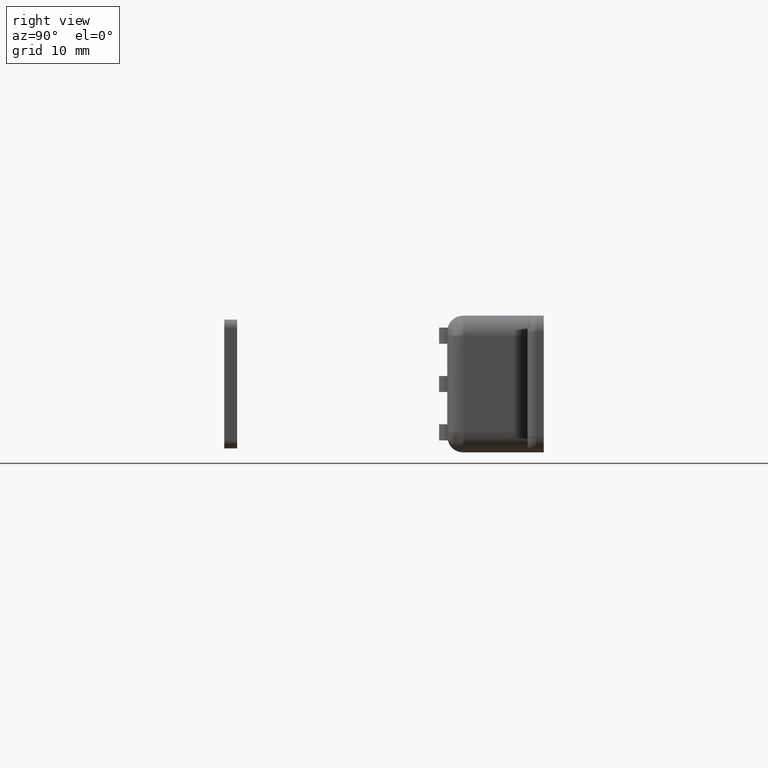
[diagram: clean part render]
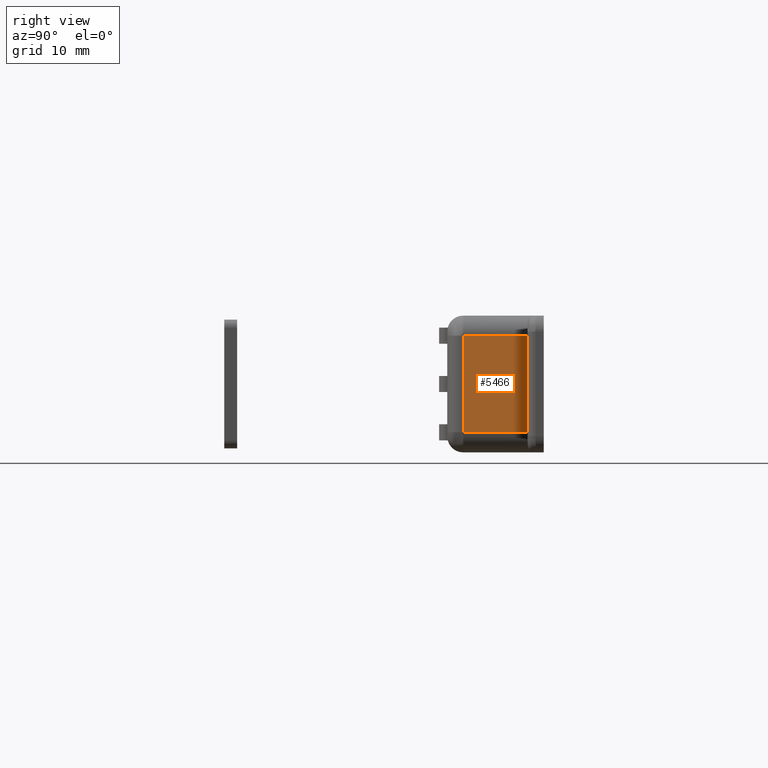
[diagram: same view with one face highlighted and labeled with its STEP entity id]
A machine part, right view. The second image highlights one B-rep face of the part: STEP entity #5466.
In plain terms, the highlighted face is a freeform B-spline surface patch.
Its self-contained STEP definition (entity closure, byte-faithful):
#4704=CARTESIAN_POINT('',(29.500000000000000,-10.0,-6.0));
#4705=VERTEX_POINT('',#4704);
#4827=CARTESIAN_POINT('',(29.500000000000000,-10.0,6.0));
#4828=VERTEX_POINT('',#4827);
#4850=CARTESIAN_POINT('',(29.500000000000000,-10.0,6.0));
#4851=CARTESIAN_POINT('',(29.500000000000000,-10.0,-6.0));
#4852=QUASI_UNIFORM_CURVE('',1,(#4850,#4851),.UNSPECIFIED.,.F.,.U.);
#4853=EDGE_CURVE('',#4828,#4705,#4852,.T.);
#4947=CARTESIAN_POINT('',(29.500000000000000,-2.0,-6.0));
#4948=VERTEX_POINT('',#4947);
#4949=CARTESIAN_POINT('',(29.500000000000000,-10.0,-6.0));
#4950=CARTESIAN_POINT('',(29.500000000000000,-2.0,-6.0));
#4951=QUASI_UNIFORM_CURVE('',1,(#4949,#4950),.UNSPECIFIED.,.F.,.U.);
#4952=EDGE_CURVE('',#4705,#4948,#4951,.T.);
#4997=CARTESIAN_POINT('',(29.500000000000000,-2.0,6.0));
#4998=VERTEX_POINT('',#4997);
#4999=CARTESIAN_POINT('',(29.500000000000000,-2.0,6.0));
#5000=CARTESIAN_POINT('',(29.500000000000000,-10.0,6.0));
#5001=QUASI_UNIFORM_CURVE('',1,(#4999,#5000),.UNSPECIFIED.,.F.,.U.);
#5002=EDGE_CURVE('',#4998,#4828,#5001,.T.);
#5345=CARTESIAN_POINT('',(29.500000000000000,-2.0,-6.0));
#5346=CARTESIAN_POINT('',(29.500000000000000,-2.0,6.0));
#5347=QUASI_UNIFORM_CURVE('',1,(#5345,#5346),.UNSPECIFIED.,.F.,.U.);
#5348=EDGE_CURVE('',#4948,#4998,#5347,.T.);
#5455=CARTESIAN_POINT('',(29.500000000000000,-10.399599984494451,-6.599399976741672));
#5456=CARTESIAN_POINT('',(29.500000000000000,-10.399599984494451,6.599400298606754));
#5457=CARTESIAN_POINT('',(29.500000000000000,-1.600399800928831,-6.599399976741672));
#5458=CARTESIAN_POINT('',(29.500000000000000,-1.600399800928831,6.599400298606754));
#5459=B_SPLINE_SURFACE_WITH_KNOTS('',1,1,((#5455,#5457),(#5456,#5458)),.UNSPECIFIED.,.F.,.F.,.U.,(2,2),(2,2),(0.0,13.198800275348431),(0.0,8.799200183565617),.UNSPECIFIED.);
#5460=ORIENTED_EDGE('',*,*,#5002,.T.);
#5461=ORIENTED_EDGE('',*,*,#4853,.T.);
#5462=ORIENTED_EDGE('',*,*,#4952,.T.);
#5463=ORIENTED_EDGE('',*,*,#5348,.T.);
#5464=EDGE_LOOP('',(#5460,#5461,#5462,#5463));
#5465=FACE_OUTER_BOUND('',#5464,.T.);
#5466=ADVANCED_FACE('',(#5465),#5459,.F.);